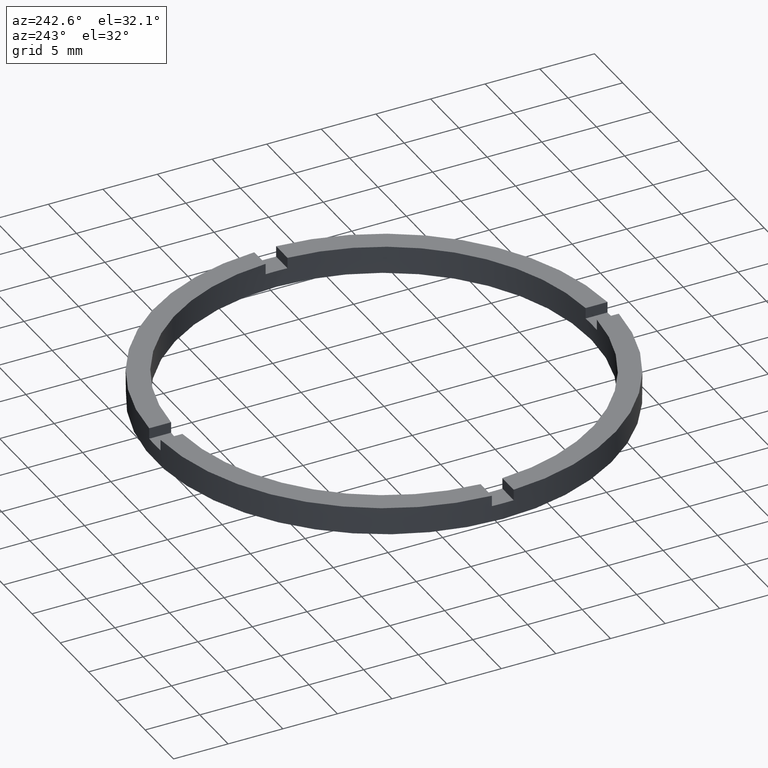
[diagram: clean part render]
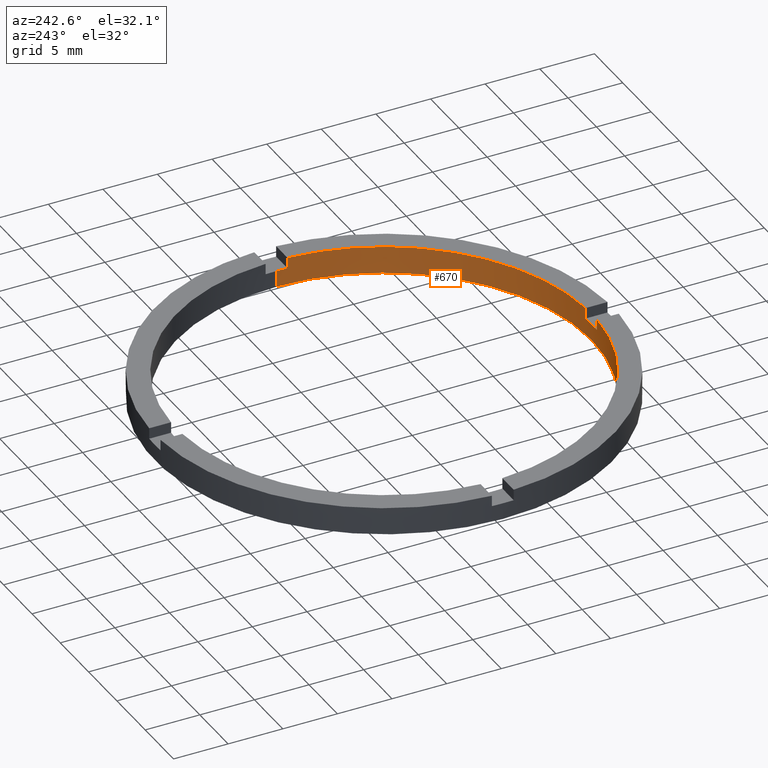
[diagram: same view with one face highlighted and labeled with its STEP entity id]
A machine part, auxiliary view. The second image highlights one B-rep face of the part: STEP entity #670.
In plain terms, the highlighted cylindrical surface (partial cylindrical patch) has radius 19 mm, axis along (-0, -0, -1).
Its self-contained STEP definition (entity closure, byte-faithful):
#2 = EDGE_CURVE ( 'NONE', #498, #31, #642, .T. ) ;
#7 = CARTESIAN_POINT ( 'NONE',  ( -19.00000000000000000, 0.000000000000000000, 2.500000000000000000 ) ) ;
#21 = DIRECTION ( 'NONE',  ( -0.000000000000000000, -0.000000000000000000, -1.000000000000000000 ) ) ;
#24 = AXIS2_PLACEMENT_3D ( 'NONE', #198, #324, #559 ) ;
#29 = ORIENTED_EDGE ( 'NONE', *, *, #262, .T. ) ;
#31 = VERTEX_POINT ( 'NONE', #265 ) ;
#38 = CARTESIAN_POINT ( 'NONE',  ( -19.00000000000000000, 0.000000000000000000, 0.000000000000000000 ) ) ;
#39 = ORIENTED_EDGE ( 'NONE', *, *, #299, .T. ) ;
#60 = AXIS2_PLACEMENT_3D ( 'NONE', #463, #91, #768 ) ;
#81 = AXIS2_PLACEMENT_3D ( 'NONE', #465, #256, #524 ) ;
#91 = DIRECTION ( 'NONE',  ( 0.000000000000000000, 0.000000000000000000, 1.000000000000000000 ) ) ;
#103 = EDGE_CURVE ( 'NONE', #492, #300, #359, .T. ) ;
#115 = LINE ( 'NONE', #437, #132 ) ;
#116 = CIRCLE ( 'NONE', #81, 19.00000000000000000 ) ;
#120 = VECTOR ( 'NONE', #484, 1000.000000000000000 ) ;
#128 = EDGE_CURVE ( 'NONE', #492, #717, #116, .T. ) ;
#132 = VECTOR ( 'NONE', #320, 1000.000000000000000 ) ;
#135 = AXIS2_PLACEMENT_3D ( 'NONE', #530, #21, #286 ) ;
#140 = VECTOR ( 'NONE', #701, 1000.000000000000000 ) ;
#147 = EDGE_CURVE ( 'NONE', #493, #717, #383, .T. ) ;
#159 = CYLINDRICAL_SURFACE ( 'NONE', #135, 19.00000000000000000 ) ;
#161 = FACE_OUTER_BOUND ( 'NONE', #649, .T. ) ;
#184 = CIRCLE ( 'NONE', #774, 19.00000000000000000 ) ;
#189 = DIRECTION ( 'NONE',  ( 1.000000000000000000, 0.000000000000000000, 0.000000000000000000 ) ) ;
#198 = CARTESIAN_POINT ( 'NONE',  ( 0.000000000000000000, 0.000000000000000000, 1.500000000000000000 ) ) ;
#199 = EDGE_CURVE ( 'NONE', #493, #577, #368, .T. ) ;
#234 = ORIENTED_EDGE ( 'NONE', *, *, #2, .F. ) ;
#236 = ORIENTED_EDGE ( 'NONE', *, *, #725, .F. ) ;
#240 = ORIENTED_EDGE ( 'NONE', *, *, #147, .F. ) ;
#241 = ORIENTED_EDGE ( 'NONE', *, *, #128, .T. ) ;
#256 = DIRECTION ( 'NONE',  ( 0.000000000000000000, 0.000000000000000000, 1.000000000000000000 ) ) ;
#259 = CARTESIAN_POINT ( 'NONE',  ( 0.000000000000000000, 0.000000000000000000, 0.000000000000000000 ) ) ;
#262 = EDGE_CURVE ( 'NONE', #308, #372, #115, .T. ) ;
#265 = CARTESIAN_POINT ( 'NONE',  ( 18.97366596101026914, -1.000000000000158318, 2.500000000000000000 ) ) ;
#268 = DIRECTION ( 'NONE',  ( -0.000000000000000000, -0.000000000000000000, -1.000000000000000000 ) ) ;
#276 = ORIENTED_EDGE ( 'NONE', *, *, #450, .T. ) ;
#286 = DIRECTION ( 'NONE',  ( -1.000000000000000000, 0.000000000000000000, 0.000000000000000000 ) ) ;
#299 = EDGE_CURVE ( 'NONE', #771, #31, #665, .T. ) ;
#300 = VERTEX_POINT ( 'NONE', #38 ) ;
#303 = AXIS2_PLACEMENT_3D ( 'NONE', #782, #657, #189 ) ;
#308 = VERTEX_POINT ( 'NONE', #523 ) ;
#320 = DIRECTION ( 'NONE',  ( -0.000000000000000000, -0.000000000000000000, -1.000000000000000000 ) ) ;
#324 = DIRECTION ( 'NONE',  ( -0.000000000000000000, 0.000000000000000000, 1.000000000000000000 ) ) ;
#353 = EDGE_CURVE ( 'NONE', #300, #372, #184, .T. ) ;
#355 = CARTESIAN_POINT ( 'NONE',  ( -1.000000000000161648, -18.97366596101026204, 1.500000000000000000 ) ) ;
#359 = LINE ( 'NONE', #7, #360 ) ;
#360 = VECTOR ( 'NONE', #268, 1000.000000000000000 ) ;
#368 = CIRCLE ( 'NONE', #303, 19.00000000000000000 ) ;
#369 = AXIS2_PLACEMENT_3D ( 'NONE', #734, #592, #466 ) ;
#372 = VERTEX_POINT ( 'NONE', #569 ) ;
#383 = LINE ( 'NONE', #411, #120 ) ;
#411 = CARTESIAN_POINT ( 'NONE',  ( -18.97366596101027625, -1.000000000000024203, 2.500000000000000000 ) ) ;
#437 = CARTESIAN_POINT ( 'NONE',  ( 19.00000000000000000, 2.326828918379970970E-15, 2.500000000000000000 ) ) ;
#443 = EDGE_CURVE ( 'NONE', #575, #577, #444, .T. ) ;
#444 = LINE ( 'NONE', #496, #690 ) ;
#450 = EDGE_CURVE ( 'NONE', #498, #308, #680, .T. ) ;
#463 = CARTESIAN_POINT ( 'NONE',  ( 0.000000000000000000, 0.000000000000000000, 2.500000000000000000 ) ) ;
#465 = CARTESIAN_POINT ( 'NONE',  ( 0.000000000000000000, 0.000000000000000000, 1.500000000000000000 ) ) ;
#466 = DIRECTION ( 'NONE',  ( 1.000000000000000000, 0.000000000000000000, 0.000000000000000000 ) ) ;
#475 = CARTESIAN_POINT ( 'NONE',  ( -19.00000000000000000, 0.000000000000000000, 1.500000000000000000 ) ) ;
#476 = CARTESIAN_POINT ( 'NONE',  ( 0.9999999999998380185, -18.97366596101028691, 2.500000000000000000 ) ) ;
#484 = DIRECTION ( 'NONE',  ( -0.000000000000000000, -0.000000000000000000, -1.000000000000000000 ) ) ;
#492 = VERTEX_POINT ( 'NONE', #475 ) ;
#493 = VERTEX_POINT ( 'NONE', #647 ) ;
#496 = CARTESIAN_POINT ( 'NONE',  ( -1.000000000000162093, -18.97366596101026559, 2.500000000000000000 ) ) ;
#498 = VERTEX_POINT ( 'NONE', #529 ) ;
#499 = ORIENTED_EDGE ( 'NONE', *, *, #199, .T. ) ;
#510 = DIRECTION ( 'NONE',  ( 0.000000000000000000, 0.000000000000000000, 1.000000000000000000 ) ) ;
#512 = DIRECTION ( 'NONE',  ( 0.000000000000000000, 0.000000000000000000, 1.000000000000000000 ) ) ;
#523 = CARTESIAN_POINT ( 'NONE',  ( 19.00000000000000000, 2.326828918379970970E-15, 1.500000000000000000 ) ) ;
#524 = DIRECTION ( 'NONE',  ( 1.000000000000000000, 0.000000000000000000, 0.000000000000000000 ) ) ;
#529 = CARTESIAN_POINT ( 'NONE',  ( 18.97366596101026914, -1.000000000000158318, 1.500000000000000000 ) ) ;
#530 = CARTESIAN_POINT ( 'NONE',  ( 0.000000000000000000, 0.000000000000000000, 2.500000000000000000 ) ) ;
#545 = DIRECTION ( 'NONE',  ( 0.000000000000000000, 0.000000000000000000, 1.000000000000000000 ) ) ;
#559 = DIRECTION ( 'NONE',  ( 1.000000000000000000, 0.000000000000000000, 0.000000000000000000 ) ) ;
#561 = DIRECTION ( 'NONE',  ( 1.000000000000000000, 0.000000000000000000, 0.000000000000000000 ) ) ;
#567 = VERTEX_POINT ( 'NONE', #609 ) ;
#569 = CARTESIAN_POINT ( 'NONE',  ( 19.00000000000000000, 2.326828918379970970E-15, 0.000000000000000000 ) ) ;
#574 = ORIENTED_EDGE ( 'NONE', *, *, #103, .F. ) ;
#575 = VERTEX_POINT ( 'NONE', #355 ) ;
#577 = VERTEX_POINT ( 'NONE', #739 ) ;
#587 = CARTESIAN_POINT ( 'NONE',  ( 18.97366596101026914, -1.000000000000158318, 2.500000000000000000 ) ) ;
#591 = EDGE_CURVE ( 'NONE', #575, #567, #696, .T. ) ;
#592 = DIRECTION ( 'NONE',  ( 0.000000000000000000, 0.000000000000000000, 1.000000000000000000 ) ) ;
#609 = CARTESIAN_POINT ( 'NONE',  ( 0.9999999999998375744, -18.97366596101028335, 1.500000000000000000 ) ) ;
#642 = LINE ( 'NONE', #587, #658 ) ;
#647 = CARTESIAN_POINT ( 'NONE',  ( -18.97366596101027625, -1.000000000000024203, 2.500000000000000000 ) ) ;
#649 = EDGE_LOOP ( 'NONE', ( #276, #29, #710, #574, #241, #240, #499, #756, #757, #236, #39, #234 ) ) ;
#657 = DIRECTION ( 'NONE',  ( 0.000000000000000000, 0.000000000000000000, 1.000000000000000000 ) ) ;
#658 = VECTOR ( 'NONE', #512, 1000.000000000000000 ) ;
#665 = CIRCLE ( 'NONE', #60, 19.00000000000000000 ) ;
#670 = ADVANCED_FACE ( 'NONE', ( #161 ), #159, .F. ) ;
#680 = CIRCLE ( 'NONE', #369, 19.00000000000000000 ) ;
#690 = VECTOR ( 'NONE', #545, 1000.000000000000000 ) ;
#693 = CARTESIAN_POINT ( 'NONE',  ( -18.97366596101027625, -1.000000000000024203, 1.500000000000000000 ) ) ;
#694 = LINE ( 'NONE', #476, #140 ) ;
#696 = CIRCLE ( 'NONE', #24, 19.00000000000000000 ) ;
#701 = DIRECTION ( 'NONE',  ( -0.000000000000000000, -0.000000000000000000, -1.000000000000000000 ) ) ;
#710 = ORIENTED_EDGE ( 'NONE', *, *, #353, .F. ) ;
#717 = VERTEX_POINT ( 'NONE', #693 ) ;
#725 = EDGE_CURVE ( 'NONE', #771, #567, #694, .T. ) ;
#734 = CARTESIAN_POINT ( 'NONE',  ( 0.000000000000000000, 0.000000000000000000, 1.500000000000000000 ) ) ;
#739 = CARTESIAN_POINT ( 'NONE',  ( -1.000000000000161648, -18.97366596101026204, 2.500000000000000000 ) ) ;
#756 = ORIENTED_EDGE ( 'NONE', *, *, #443, .F. ) ;
#757 = ORIENTED_EDGE ( 'NONE', *, *, #591, .T. ) ;
#762 = CARTESIAN_POINT ( 'NONE',  ( 0.9999999999998375744, -18.97366596101028335, 2.500000000000000000 ) ) ;
#768 = DIRECTION ( 'NONE',  ( 1.000000000000000000, 0.000000000000000000, 0.000000000000000000 ) ) ;
#771 = VERTEX_POINT ( 'NONE', #762 ) ;
#774 = AXIS2_PLACEMENT_3D ( 'NONE', #259, #510, #561 ) ;
#782 = CARTESIAN_POINT ( 'NONE',  ( 0.000000000000000000, 0.000000000000000000, 2.500000000000000000 ) ) ;